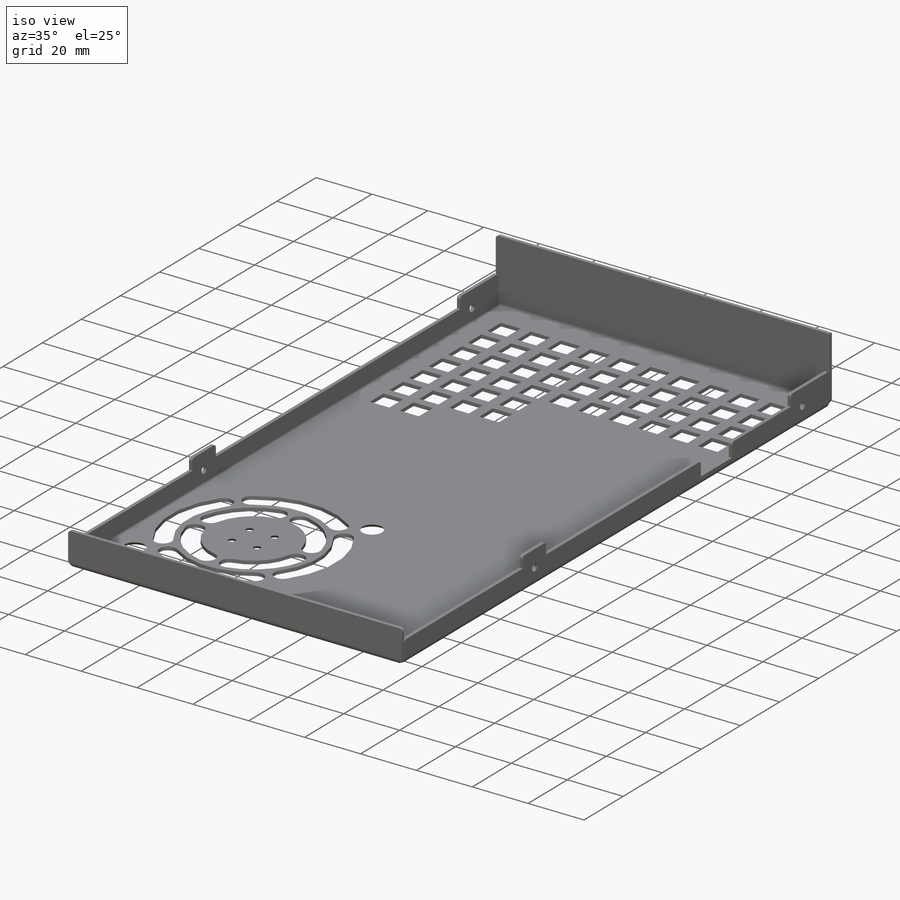
[diagram: iso view]
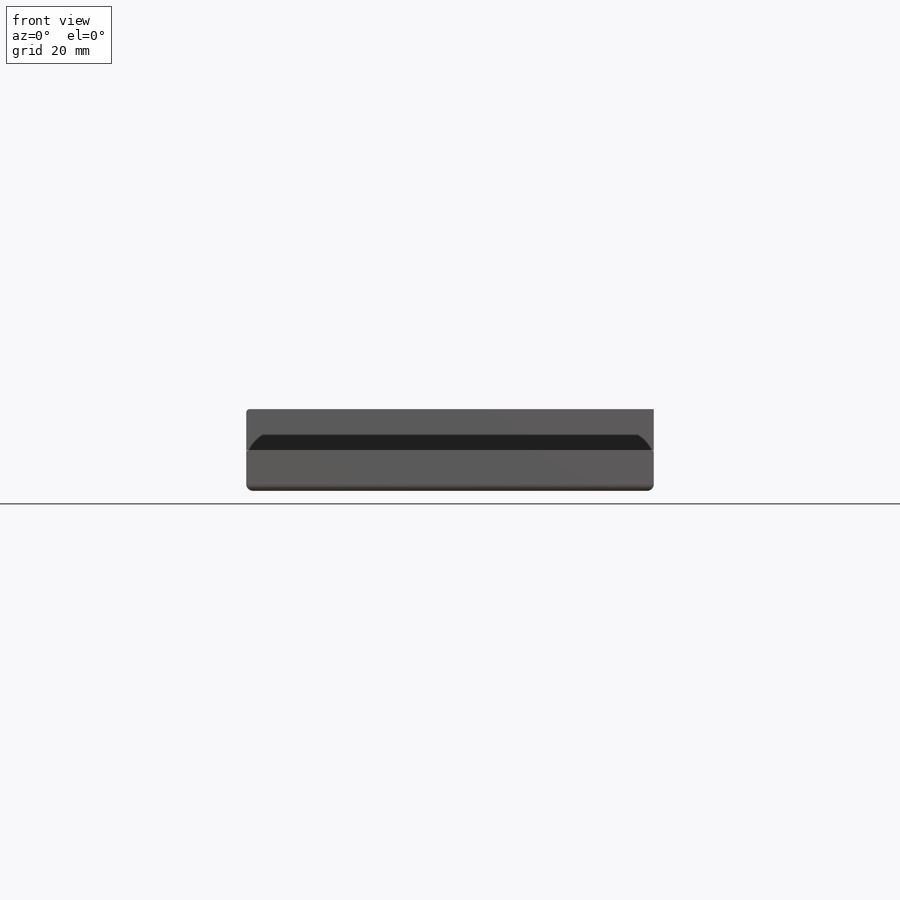
[diagram: front view]
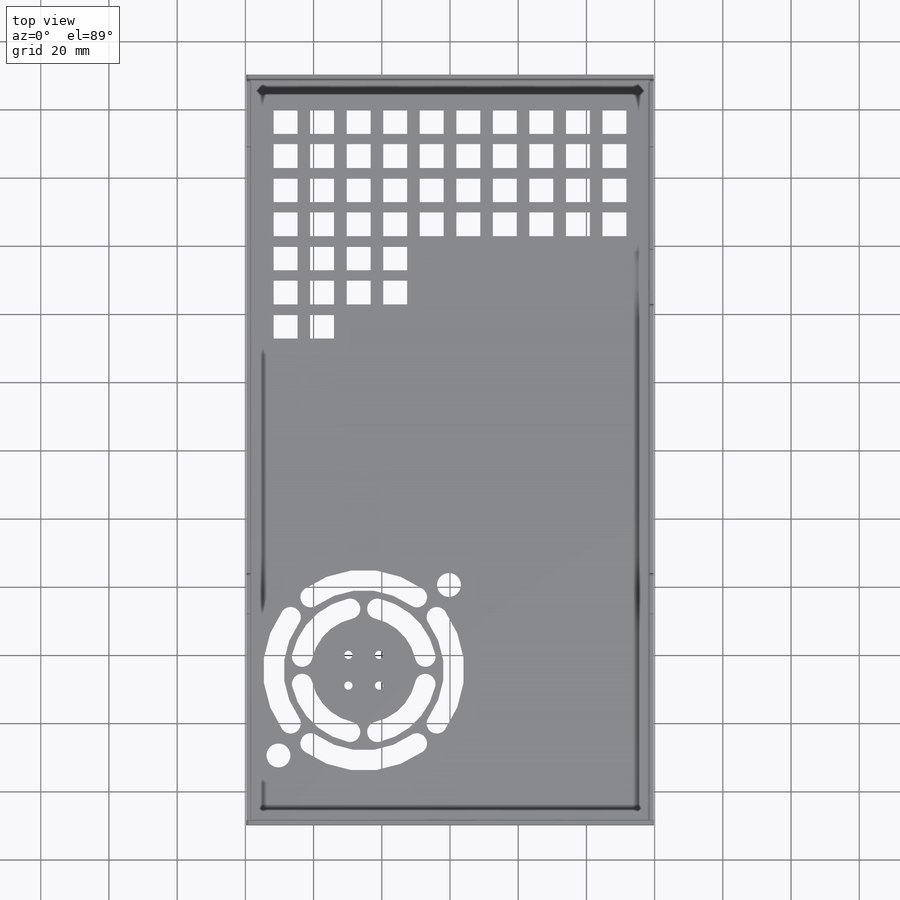
[diagram: top view]
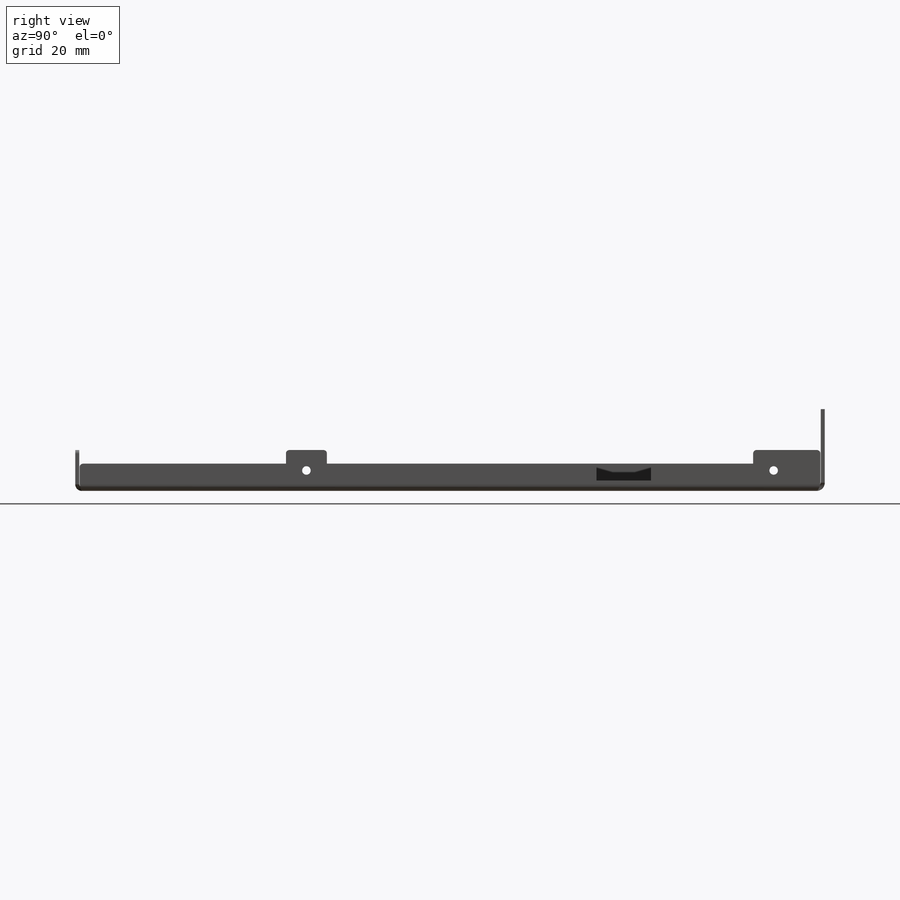
[diagram: right view]
SOLIDWORKS PART (.sldprt)
format: sldprt  version: not decoded by parser v0  size: 1,062,912 bytes
history: native  units: mm
features: sketch x35, sheet_metal_op x13, hole x3, cut_extrude x2, thread x2, material x1, fillet x1 + 9 further entries (+13 scaffold rows collapsed; 9 parser-record rows omitted)
feature tree (88):
  scaffold x13  (default folders/planes/origin — collapsed)
  material  "3003 Alloy"
  sketch  "Sketch1"  dims[c1.D1=119.5mm c1.D2=219.8mm c2.D1=0.7366mm c2.D2=0.5 c2.D3=0.0mm c2.D6=500.0mm]
  sheet_metal_op  "Base-Flange1"
  sketch  "Sketch10"
  sketch  "Sketch11"
  sketch  "Sketch13"  dims[D1=0.7366mm D4=90.0deg D5=1.0 D8=0.6mm D9=0.6mm]
  sheet_metal_op  "EdgeBend2"
  sheet_metal_op  "EdgeBend3"  Edge-Flange2=0
  sketch  "Sketch18"
  sheet_metal_op  "EdgeBend4"
  sketch  "Sketch19"  dims[D1=8.0mm D2=3.0mm D3=21.0mm D4=30.0mm D5=16.0mm D6=125.0mm D7=12.0mm]
  cut_extrude  "Cut-Extrude1"  [1 undecoded]
  sketch  "Sketch20"  dims[D1=0.7366mm]
  fillet  "Fillet1"  Radius=1mm
  sketch  "Sketch23"  dims[D1=6.0mm D2=137.0mm]
  hole  "M3x0.5 Tapped Hole1"  Diameter=2.5mm Depth=119.671161mm
  sketch  "3DSketch1"
  sketch  "Sketch24"  dims[hole-wizard template sketch: 60 standard entries collapsed; hole parameters kept: c18.Thru Tap Drill Depth=~119.671161mm]
  thread  "Hole Thread1"  Diameter=3mm  [1 undecoded]
  thread  "Hole Thread2"  Diameter=3mm  [1 undecoded]
  sketch  "Sketch25"  dims[c1.D5=3.0mm c1.D6=18.5mm c1.D9=26.5mm c1.D10=~3.88371mm c1.D1=9.0mm c1.D2=45.5mm c1.D3=34.45mm c1.D4=50.0mm c1.D7=~17.204317mm c2.D10=~22.987684mm c2.D12=7.0mm c2.D13=7.0mm c2.D15=10.0mm c2.D7=65.0deg c3.D10=72.0deg c3.D14=10.0 c3.D16=4.0 c3.D17=3.0 c3.D18=2.0 c3.D8=4.0 c3.D11=4.0]
  cut_extrude  "Cut-Extrude2"  [1 undecoded]
  hole  "CSK for M2 Flat Head Machine Screw1"  Diameter=2.4mm Depth=24.000025mm
  sketch  "3DSketch2"
  sketch  "Sketch26"  dims[hole-wizard template sketch: 55 standard entries collapsed; hole parameters kept: c17.Thru Hole Depth=~24.000025mm c17.Near C'Sink Dia.=4.4mm c17.D4=~3.666174mm c17.Near C'Sink Angle=90.0deg]
  hole  "CSK for M4 Flat Head Machine Screw1"  Diameter=4.5mm Depth=24.000025mm
  sketch  "3DSketch3"
  sketch  "Sketch27"  dims[hole-wizard template sketch: 55 standard entries collapsed; hole parameters kept: c17.Thru Hole Depth=~24.000025mm c17.Near C'Sink Dia.=9.4mm c17.D4=~3.666174mm c17.Near C'Sink Angle=90.0deg]
  sketch  "Bend-Lines1"
  sketch  "Bounding-Box1"
  sheet_metal_op  "Sheet-Metal1"
  "Flat-Pattern1"
  sketch  "Bend-Lines2"
  sketch  "Bounding-Box2"
  parser-record x9  (decoder bookkeeping rows leaked as tree rows — omitted from the tree; the rows remain in map.json)
  sheet_metal_op  "Sheet-Metal2"
  "Flat-Pattern1"
  sketch  "Bend-Lines2"
  sketch  "Bounding-Box2"
  sheet_metal_op  "Sheet-Metal3"
  "Flat-Pattern1"
  sketch  "Bend-Lines2"
  sketch  "Bounding-Box2"
  sheet_metal_op  "Sheet-Metal4"
  "Flat-Pattern1"
  sketch  "Bend-Lines2"
  sketch  "Bounding-Box2"
  sheet_metal_op  "Sheet-Metal5"
  "Flat-Pattern5"
  sketch  "Bend-Lines3"
  sketch  "Bounding-Box3"
  sheet_metal_op  "Sheet-Metal6"
  "Flat-Pattern5"
  sketch  "Bend-Lines3"
  sketch  "Bounding-Box3"
  sheet_metal_op  "Sheet-Metal7"
  "Flat-Pattern5"
  sketch  "Bend-Lines3"
  sketch  "Bounding-Box3"
  sheet_metal_op  "Sheet-Metal8"
  "Flat-Pattern5"
  sketch  "Bend-Lines3"
  sketch  "Bounding-Box3"
  sheet_metal_op  "Sheet-Metal9"
  "Flat-Pattern5"
  sketch  "Bend-Lines3"
  sketch  "Bounding-Box3"
decode coverage: 16 of 56 modeling features carry decoded parameters; 9 rows unclassified (native names shown)
note: ~ marks probable driven/reference dimensions
note: 4 parameter values undecoded
note: suppression state not decoded; provenance and decode notes live in map.json
